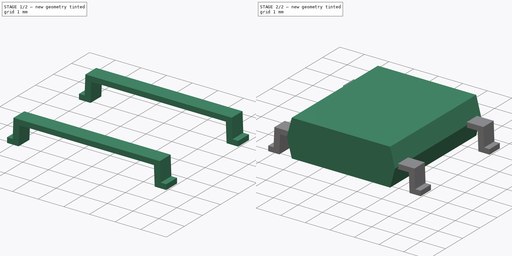
[diagram: build sequence overview — one tinted view per stage of 2, left to right]
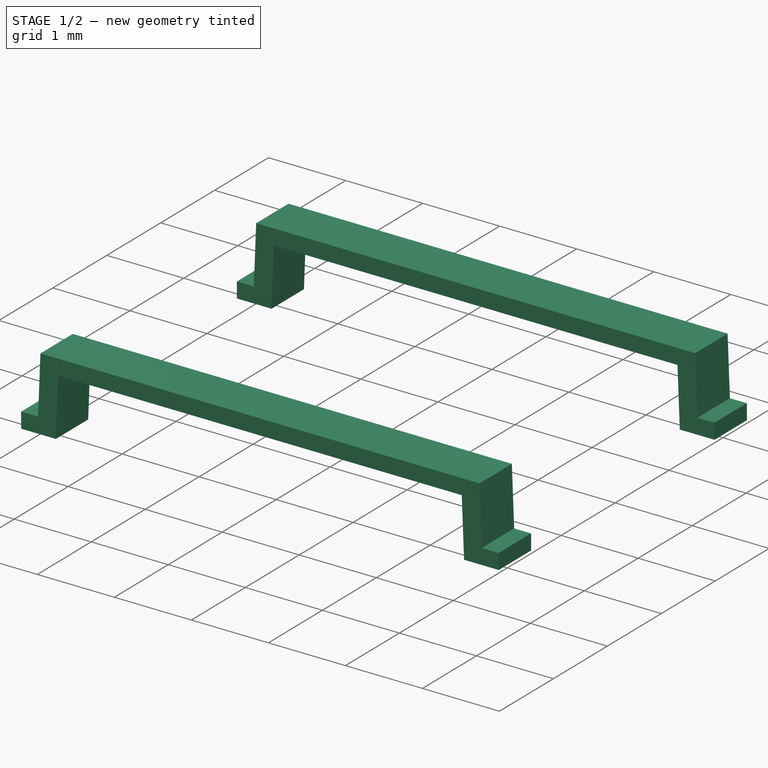
[diagram: stage 1 of 2 — iso view after this stage's code; geometry added in this stage tinted green]
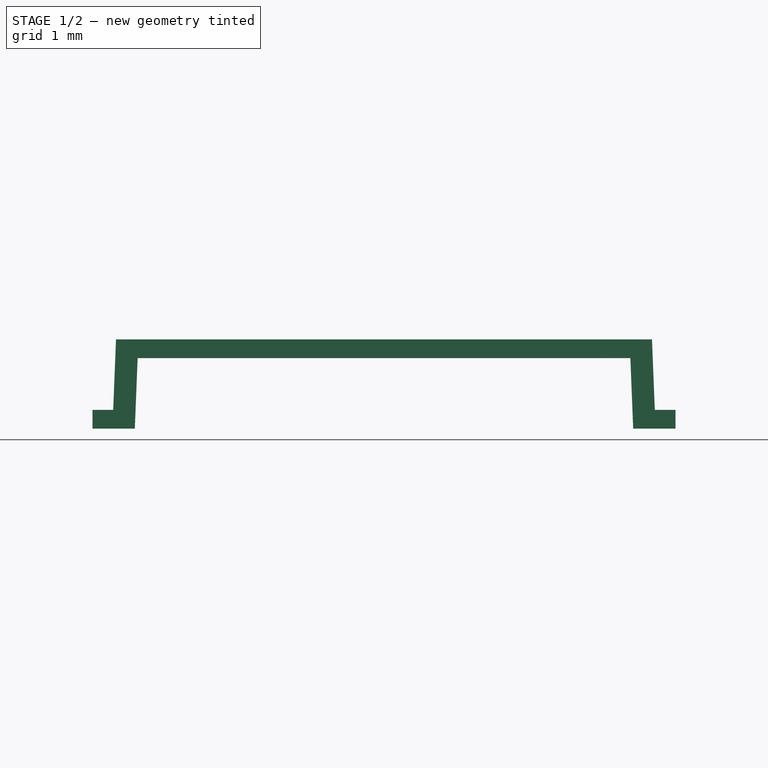
[diagram: stage 1 of 2 — front view after this stage's code; geometry added in this stage tinted green]
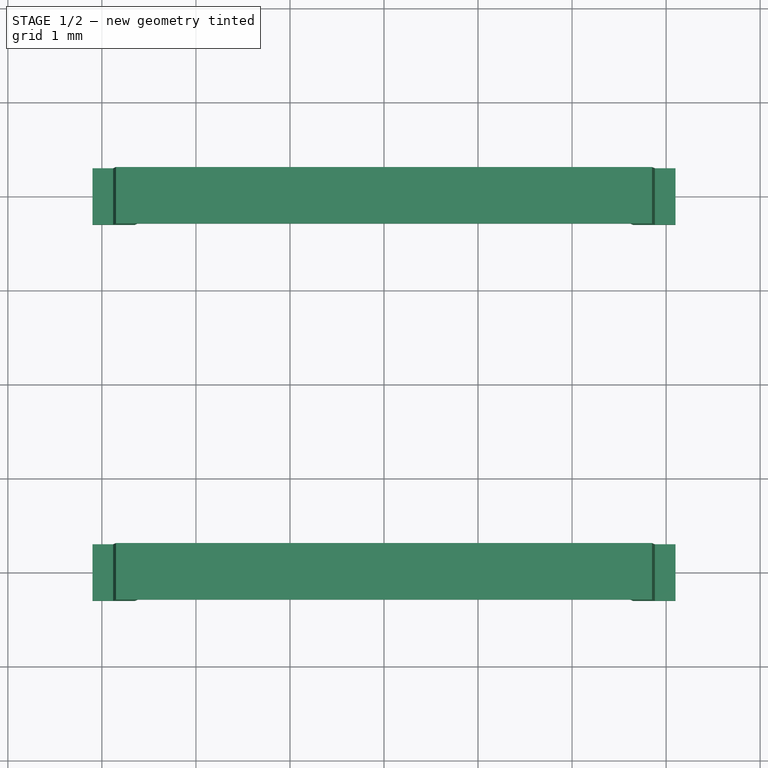
[diagram: stage 1 of 2 — top view after this stage's code; geometry added in this stage tinted green]
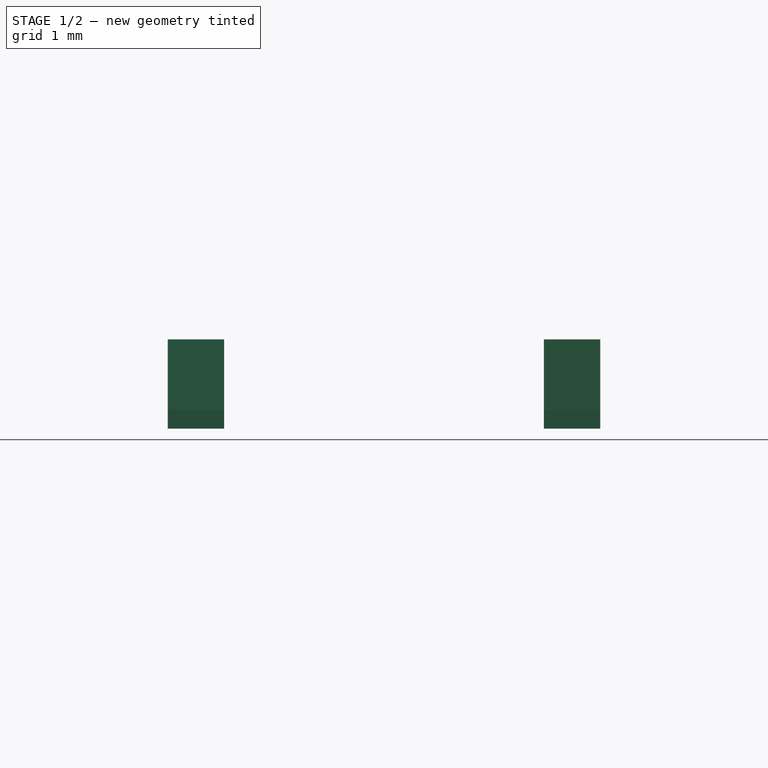
[diagram: stage 1 of 2 — right view after this stage's code; geometry added in this stage tinted green]
FCSTD DOCUMENT  (FreeCAD 0.16R6712 (Git))
Label: Diode_Bridge_Diotec_ABS
License: All rights reserved
LicenseURL: http://en.wikipedia.org/wiki/All_rights_reserved
objects: Sketcher::SketchObject×3, PartDesign::Pad×3, Part::MultiFuse×1
note: 10 computed .brp shape members not serialized (recipe doc carries the construction recipe); baked Part::Feature solids carry a one-line shape summary decoded from their .brp

FEATURE [Sketcher::SketchObject] Sketch001
  Placement = pos=(0,2,0) rot=(1,0,0;1.5708rad)
  expr: Constraints[34] = 5.3
  sketch-geometry (14):
    g0: LineSegment StartX=-3.1 StartY=0 StartZ=0 EndX=-2.65 EndY=0 EndZ=0
    g1: LineSegment StartX=-2.88 StartY=0.2 StartZ=0 EndX=-3.1 EndY=0.2 EndZ=0
    g2: LineSegment StartX=-3.1 StartY=0.2 StartZ=0 EndX=-3.1 EndY=0 EndZ=0
    g3: LineSegment StartX=3.1 StartY=0 StartZ=0 EndX=2.65 EndY=0 EndZ=0
    g4: LineSegment StartX=2.88 StartY=0.2 StartZ=0 EndX=3.1 EndY=0.2 EndZ=0
    g5: LineSegment StartX=3.1 StartY=0.2 StartZ=0 EndX=3.1 EndY=0 EndZ=0
    g6: LineSegment StartX=-2.85 StartY=0.95 StartZ=0 EndX=2.85 EndY=0.95 EndZ=0
    g7: LineSegment StartX=2.62 StartY=0.75 StartZ=0 EndX=-2.62 EndY=0.75 EndZ=0
    g8: GeomPoint [constr] X=0 Y=0.95 Z=0
    g9: GeomPoint [constr] X=0 Y=0.75 Z=0
    g10: LineSegment StartX=-2.88 StartY=0.2 StartZ=0 EndX=-2.85 EndY=0.95 EndZ=0
    g11: LineSegment StartX=-2.65 StartY=0 StartZ=0 EndX=-2.62 EndY=0.75 EndZ=0
    g12: LineSegment StartX=2.62 StartY=0.75 StartZ=0 EndX=2.65 EndY=0 EndZ=0
    g13: LineSegment StartX=2.88 StartY=0.2 StartZ=0 EndX=2.85 EndY=0.95 EndZ=0
  constraints (37):
    c: Coincident(g1,g2)
    c: Coincident(g2,g0)
    c: Horizontal(g0)
    c: Horizontal(g1)
    c: Vertical(g2)
    c: PointOnObject(g0,g-1)
    c: Coincident(g4,g5)
    c: Coincident(g5,g3)
    c: Horizontal(g4)
    c: Vertical(g5)
    c: PointOnObject(g3,g-1)
    c: Horizontal(g6)
    c: Horizontal(g7)
    c: Equal(g0,g3)
    c: Equal(g5,g2)
    c: Equal(g1,g4)
    c: DistanceY(g5,g5) = 0.2
    c: Symmetric(g0,g3,g-1)
    c: DistanceY(g7,g6) = 0.2
    c: PointOnObject(g8,g-2)
    c: PointOnObject(g9,g-2)
    c: Symmetric(g7,g7,g9)
    c: Symmetric(g6,g6,g8)
    c: Coincident(g10,g1)
    c: Coincident(g10,g6)
    c: Coincident(g11,g7)
    c: Coincident(g11,g0)
    c: Coincident(g12,g7)
    c: Coincident(g12,g3)
    c: Coincident(g13,g4)
    c: Coincident(g13,g6)
    c: Parallel(g12,g13)
    c: DistanceY(g-1,g9) = 0.75
    c: DistanceX(g0,g3) = 6.2
    c: DistanceX(g0,g3) = 5.3
    c: DistanceX(g1,g1) = 0.22
    c: DistanceX(g6,g6) = 5.7
FEATURE [PartDesign::Pad] Pad001
  Length = 0.6
  Length2 = 100
  Midplane = true
  Placement = pos=(0,2,0) rot=(1,0,0;1.5708rad)
  Sketch = -> Sketch001
  Type = 0
FEATURE [Sketcher::SketchObject] Sketch002
  Placement = pos=(0,-2,0) rot=(1,0,0;1.5708rad)
  expr: Constraints[34] = 5.3
  sketch-geometry (14):
    g0: LineSegment StartX=-3.1 StartY=0 StartZ=0 EndX=-2.65 EndY=0 EndZ=0
    g1: LineSegment StartX=-2.88 StartY=0.2 StartZ=0 EndX=-3.1 EndY=0.2 EndZ=0
    g2: LineSegment StartX=-3.1 StartY=0.2 StartZ=0 EndX=-3.1 EndY=0 EndZ=0
    g3: LineSegment StartX=3.1 StartY=0 StartZ=0 EndX=2.65 EndY=0 EndZ=0
    g4: LineSegment StartX=2.88 StartY=0.2 StartZ=0 EndX=3.1 EndY=0.2 EndZ=0
    g5: LineSegment StartX=3.1 StartY=0.2 StartZ=0 EndX=3.1 EndY=0 EndZ=0
    g6: LineSegment StartX=-2.85 StartY=0.95 StartZ=0 EndX=2.85 EndY=0.95 EndZ=0
    g7: LineSegment StartX=2.62 StartY=0.75 StartZ=0 EndX=-2.62 EndY=0.75 EndZ=0
    g8: GeomPoint [constr] X=0 Y=0.95 Z=0
    g9: GeomPoint [constr] X=0 Y=0.75 Z=0
    g10: LineSegment StartX=-2.88 StartY=0.2 StartZ=0 EndX=-2.85 EndY=0.95 EndZ=0
    g11: LineSegment StartX=-2.65 StartY=0 StartZ=0 EndX=-2.62 EndY=0.75 EndZ=0
    g12: LineSegment StartX=2.62 StartY=0.75 StartZ=0 EndX=2.65 EndY=0 EndZ=0
    g13: LineSegment StartX=2.88 StartY=0.2 StartZ=0 EndX=2.85 EndY=0.95 EndZ=0
  constraints (37):
    c: Coincident(g1,g2)
    c: Coincident(g2,g0)
    c: Horizontal(g0)
    c: Horizontal(g1)
    c: Vertical(g2)
    c: PointOnObject(g0,g-1)
    c: Coincident(g4,g5)
    c: Coincident(g5,g3)
    c: Horizontal(g4)
    c: Vertical(g5)
    c: PointOnObject(g3,g-1)
    c: Horizontal(g6)
    c: Horizontal(g7)
    c: Equal(g0,g3)
    c: Equal(g5,g2)
    c: Equal(g1,g4)
    c: DistanceY(g5,g5) = 0.2
    c: Symmetric(g0,g3,g-1)
    c: DistanceY(g7,g6) = 0.2
    c: PointOnObject(g8,g-2)
    c: PointOnObject(g9,g-2)
    c: Symmetric(g7,g7,g9)
    c: Symmetric(g6,g6,g8)
    c: Coincident(g10,g1)
    c: Coincident(g10,g6)
    c: Coincident(g11,g7)
    c: Coincident(g11,g0)
    c: Coincident(g12,g7)
    c: Coincident(g12,g3)
    c: Coincident(g13,g4)
    c: Coincident(g13,g6)
    c: Parallel(g12,g13)
    c: DistanceY(g-1,g9) = 0.75
    c: DistanceX(g0,g3) = 6.2
    c: DistanceX(g0,g3) = 5.3
    c: DistanceX(g1,g1) = 0.22
    c: DistanceX(g6,g6) = 5.7
FEATURE [PartDesign::Pad] Pad002
  Length = 0.6
  Length2 = 100
  Midplane = true
  Placement = pos=(0,-2,0) rot=(1,0,0;1.5708rad)
  Sketch = -> Sketch002
  Type = 0
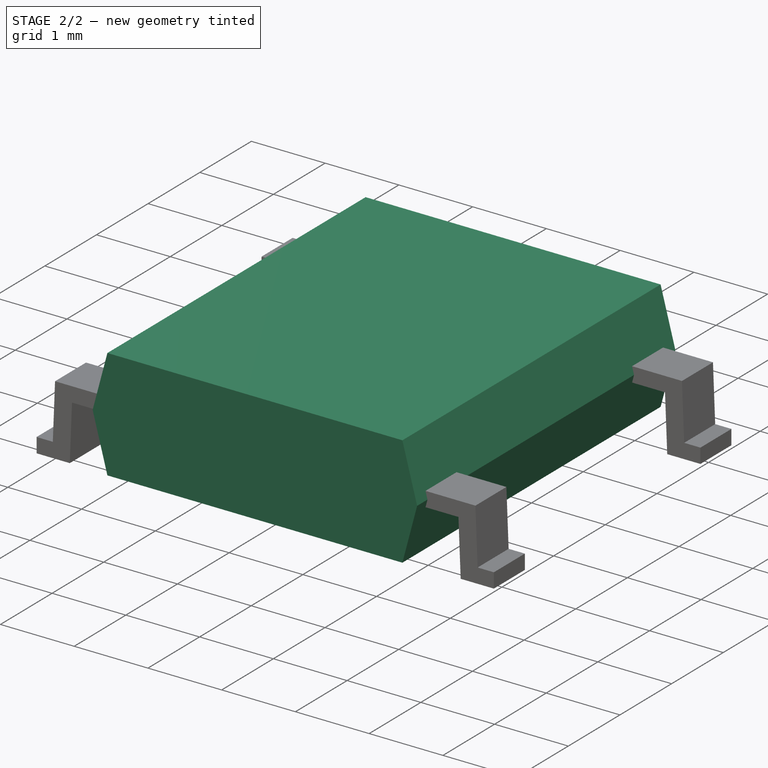
[diagram: stage 2 of 2 — iso view after this stage's code; geometry added in this stage tinted green]
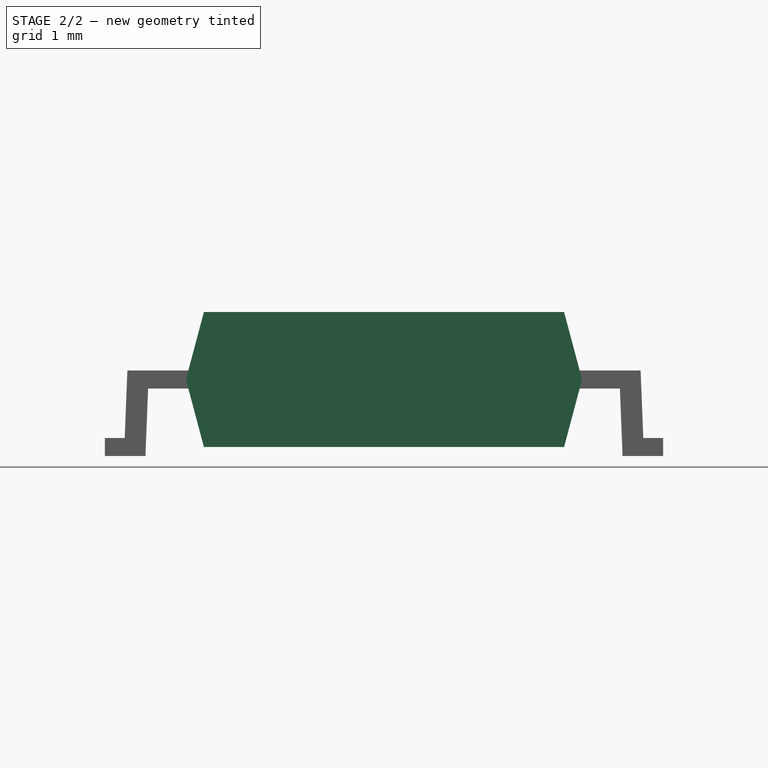
[diagram: stage 2 of 2 — front view after this stage's code; geometry added in this stage tinted green]
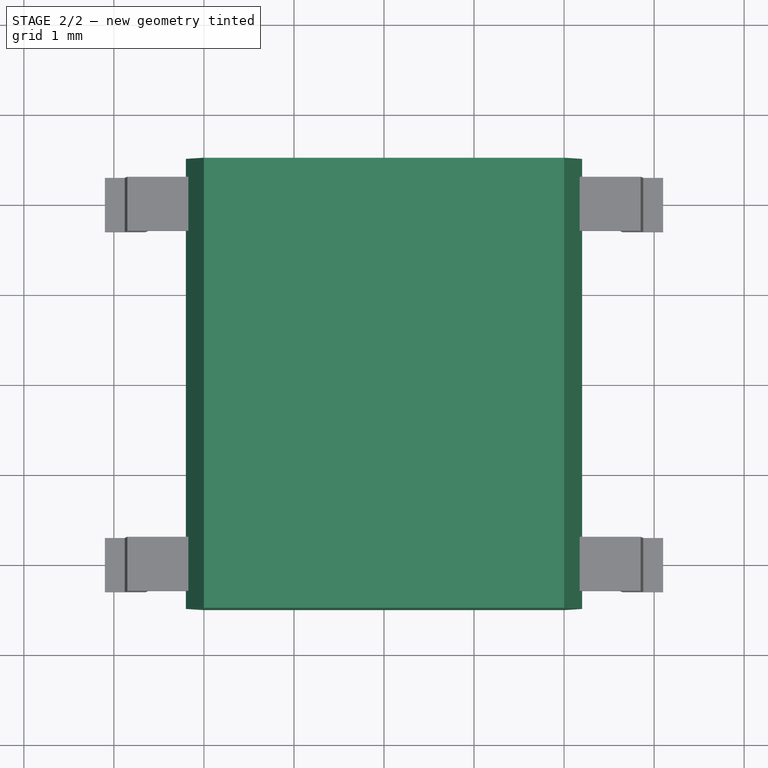
[diagram: stage 2 of 2 — top view after this stage's code; geometry added in this stage tinted green]
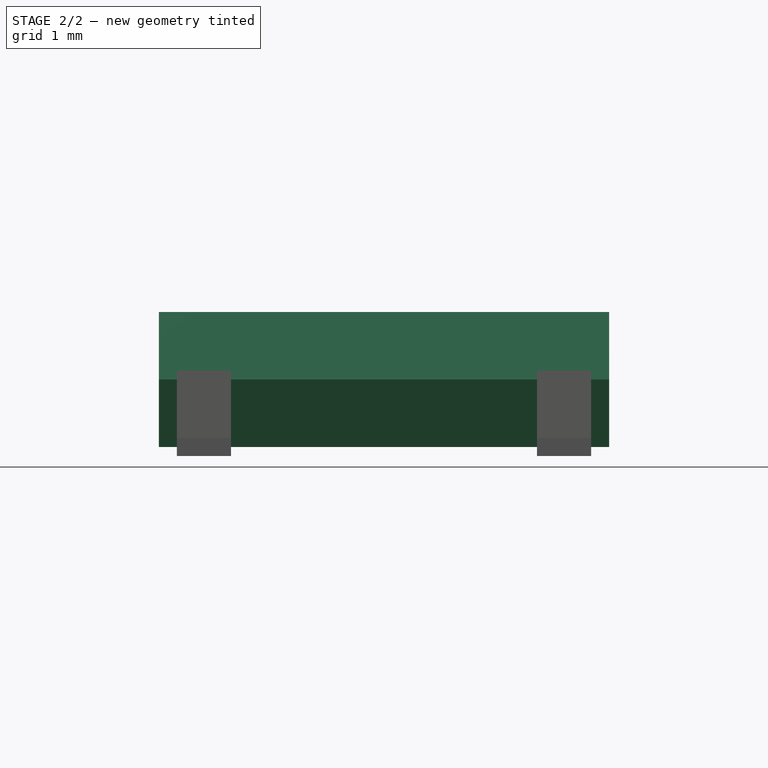
[diagram: stage 2 of 2 — right view after this stage's code; geometry added in this stage tinted green]
FEATURE [Sketcher::SketchObject] Sketch
  Placement = pos=(0,0,0) rot=(1,0,0;1.5708rad)
  sketch-geometry (9):
    g0: LineSegment StartX=-2 StartY=0.1 StartZ=0 EndX=2 EndY=0.1 EndZ=0
    g1: LineSegment StartX=2 StartY=0.1 StartZ=0 EndX=2.2 EndY=0.85 EndZ=0
    g2: LineSegment StartX=2.2 StartY=0.85 StartZ=0 EndX=2 EndY=1.6 EndZ=0
    g3: LineSegment StartX=2 StartY=1.6 StartZ=0 EndX=-2 EndY=1.6 EndZ=0
    g4: LineSegment StartX=-2 StartY=1.6 StartZ=0 EndX=-2.2 EndY=0.85 EndZ=0
    g5: LineSegment StartX=-2.2 StartY=0.85 StartZ=0 EndX=-2 EndY=0.1 EndZ=0
    g6: LineSegment [constr] StartX=-2.2 StartY=0.85 StartZ=0 EndX=2.2 EndY=0.85 EndZ=0
    g7: LineSegment [constr] StartX=0 StartY=1.6 StartZ=0 EndX=0 EndY=0.1 EndZ=0
    g8: GeomPoint [constr] X=0 Y=0.85 Z=0
  constraints (26):
    c: Horizontal(g0)
    c: Coincident(g1,g0)
    c: Coincident(g2,g1)
    c: Coincident(g3,g2)
    c: Horizontal(g3)
    c: Coincident(g4,g3)
    c: Coincident(g5,g4)
    c: Coincident(g5,g0)
    c: Coincident(g6,g4)
    c: Coincident(g6,g1)
    c: Horizontal(g6)
    c: PointOnObject(g7,g3)
    c: PointOnObject(g7,g0)
    c: Vertical(g7)
    c: PointOnObject(g8,g6)
    c: PointOnObject(g8,g7)
    c: Symmetric(g7,g7,g8)
    c: Symmetric(g6,g6,g8)
    c: Symmetric(g3,g3,g7)
    c: Symmetric(g0,g0,g7)
    c: DistanceX(g0,g0) = 4
    c: Equal(g3,g0)
    c: DistanceX(g6,g6) = 4.4
    c: PointOnObject(g8,g-2)
    c: DistanceY(g0,g2) = 1.5
    c: DistanceY(g-1,g0) = 0.1
FEATURE [PartDesign::Pad] Pad
  Length = 5
  Length2 = 100
  Midplane = true
  Placement = pos=(0,0,0) rot=(1,0,0;1.5708rad)
  Sketch = -> Sketch
  Type = 0
FEATURE [Part::MultiFuse] Pad001_mp_cp  label="Diode_Bridge_Diotec_ABS"
  Shapes = -> [Pad001,Pad,Pad002]
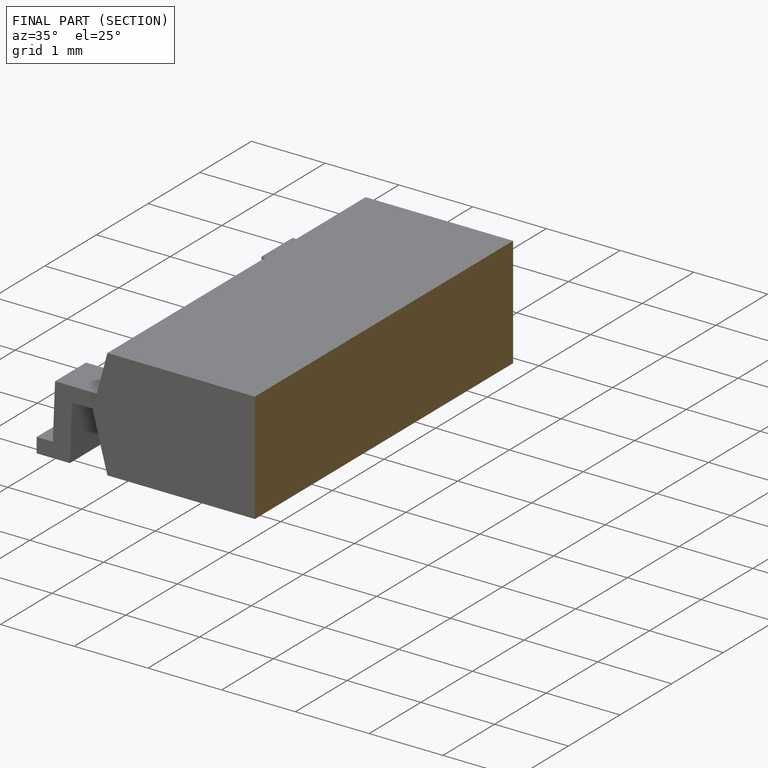
[diagram: finished part — half-section view (interior)]
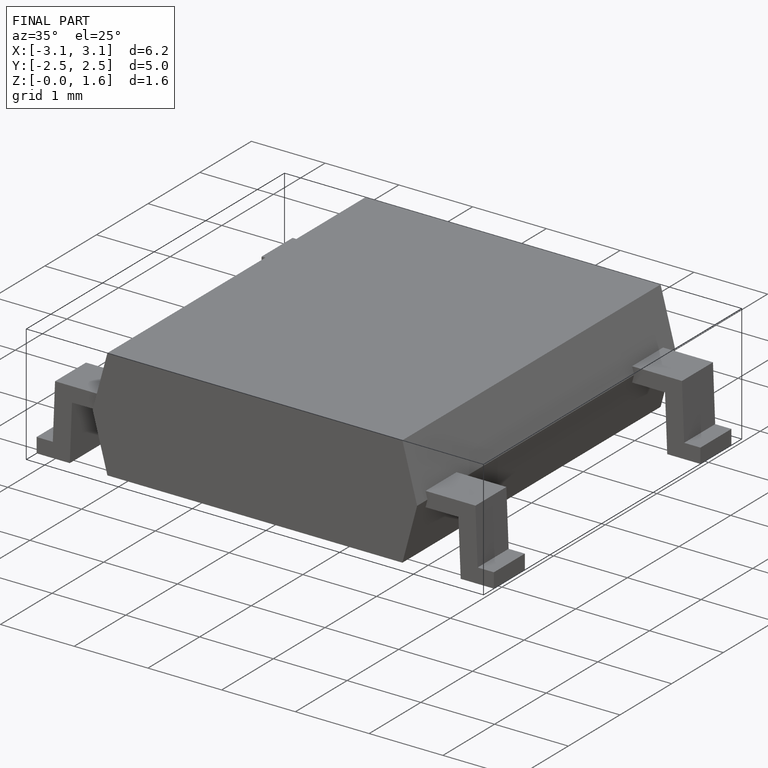
[diagram: finished part — iso view with bounding-box wireframe]
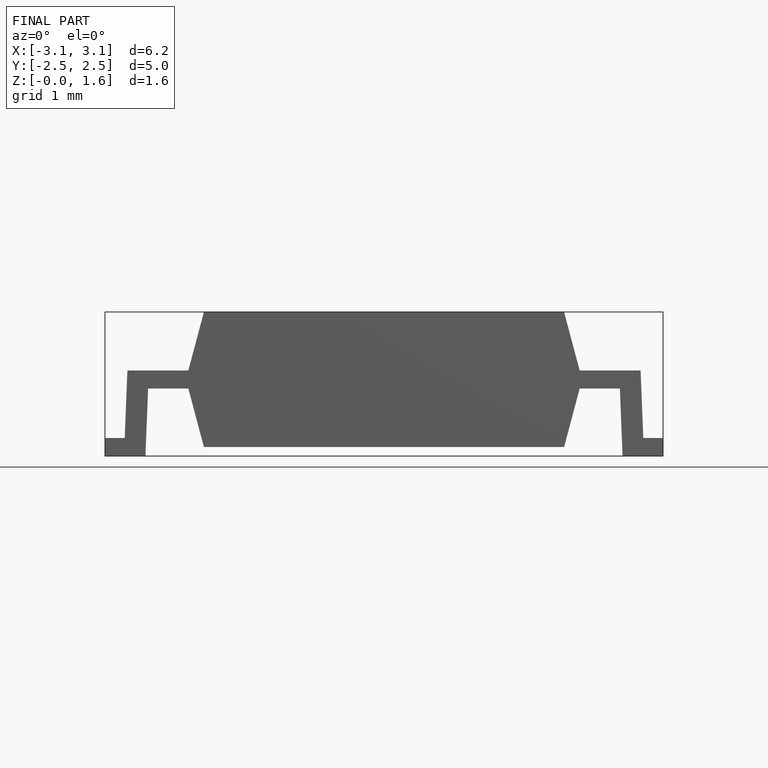
[diagram: finished part — front view with bounding-box wireframe]
